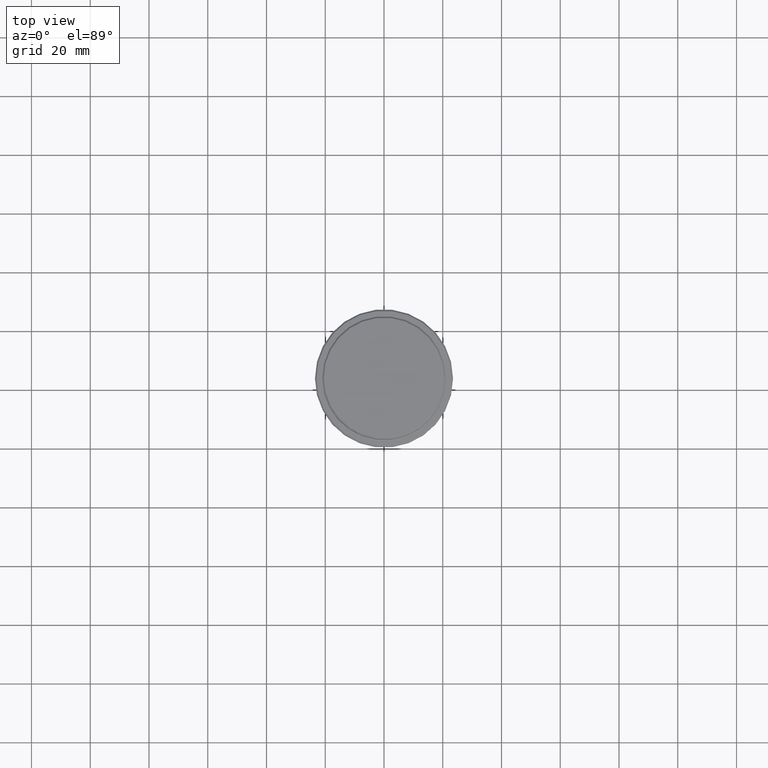
[diagram: clean part render]
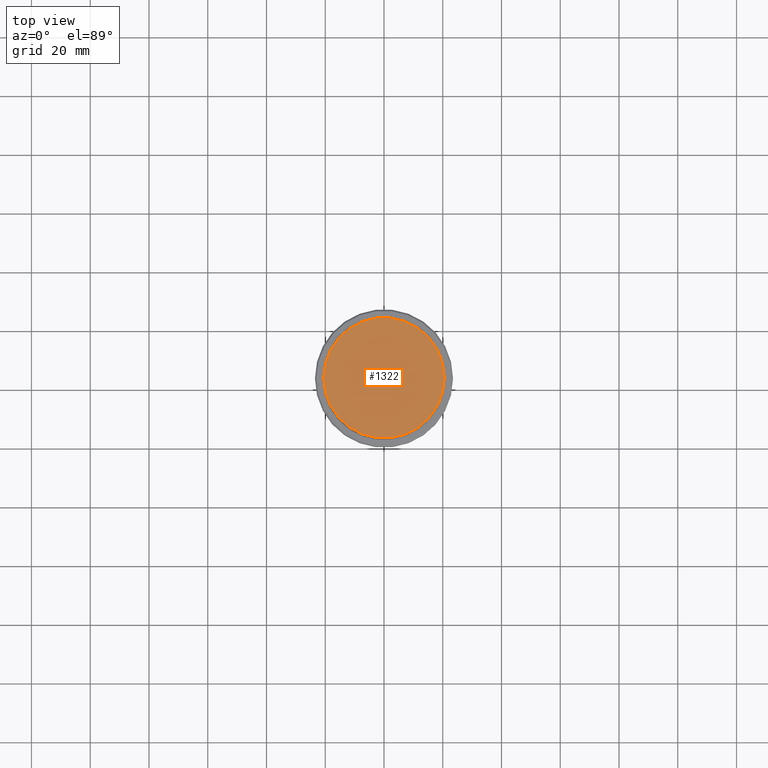
[diagram: same view with one face highlighted and labeled with its STEP entity id]
A machine part, top view. The second image highlights one B-rep face of the part: STEP entity #1322.
In plain terms, the highlighted planar face has unit normal (0, -0, 1).
Its self-contained STEP definition (entity closure, byte-faithful):
#36 = DIRECTION ( 'NONE',  ( -0.000000000000000000, -0.000000000000000000, 1.000000000000000000 ) ) ;
#89 = EDGE_LOOP ( 'NONE', ( #429, #844 ) ) ;
#152 = DIRECTION ( 'NONE',  ( 1.000000000000000000, 0.000000000000000000, 0.000000000000000000 ) ) ;
#161 = CIRCLE ( 'NONE', #951, 20.50000000000001776 ) ;
#213 = AXIS2_PLACEMENT_3D ( 'NONE', #1239, #36, #467 ) ;
#340 = VERTEX_POINT ( 'NONE', #671 ) ;
#365 = CARTESIAN_POINT ( 'NONE',  ( 0.000000000000000000, 0.000000000000000000, 0.000000000000000000 ) ) ;
#429 = ORIENTED_EDGE ( 'NONE', *, *, #839, .T. ) ;
#439 = AXIS2_PLACEMENT_3D ( 'NONE', #1111, #1001, #1335 ) ;
#467 = DIRECTION ( 'NONE',  ( 1.000000000000000000, 0.000000000000000000, 0.000000000000000000 ) ) ;
#671 = CARTESIAN_POINT ( 'NONE',  ( 20.50000000000001776, 2.541142108230758663E-15, 0.000000000000000000 ) ) ;
#673 = FACE_OUTER_BOUND ( 'NONE', #89, .T. ) ;
#720 = CARTESIAN_POINT ( 'NONE',  ( -20.50000000000001776, 0.000000000000000000, 0.000000000000000000 ) ) ;
#757 = VERTEX_POINT ( 'NONE', #720 ) ;
#812 = CIRCLE ( 'NONE', #213, 20.50000000000001776 ) ;
#839 = EDGE_CURVE ( 'NONE', #757, #340, #812, .T. ) ;
#844 = ORIENTED_EDGE ( 'NONE', *, *, #932, .T. ) ;
#932 = EDGE_CURVE ( 'NONE', #340, #757, #161, .T. ) ;
#951 = AXIS2_PLACEMENT_3D ( 'NONE', #365, #1358, #152 ) ;
#1001 = DIRECTION ( 'NONE',  ( 0.000000000000000000, -0.000000000000000000, 1.000000000000000000 ) ) ;
#1111 = CARTESIAN_POINT ( 'NONE',  ( 0.000000000000000000, 0.000000000000000000, 0.000000000000000000 ) ) ;
#1239 = CARTESIAN_POINT ( 'NONE',  ( 0.000000000000000000, 0.000000000000000000, 0.000000000000000000 ) ) ;
#1322 = ADVANCED_FACE ( 'NONE', ( #673 ), #1329, .T. ) ;
#1329 = PLANE ( 'NONE',  #439 ) ;
#1335 = DIRECTION ( 'NONE',  ( 1.000000000000000000, 0.000000000000000000, 0.000000000000000000 ) ) ;
#1358 = DIRECTION ( 'NONE',  ( -0.000000000000000000, -0.000000000000000000, 1.000000000000000000 ) ) ;